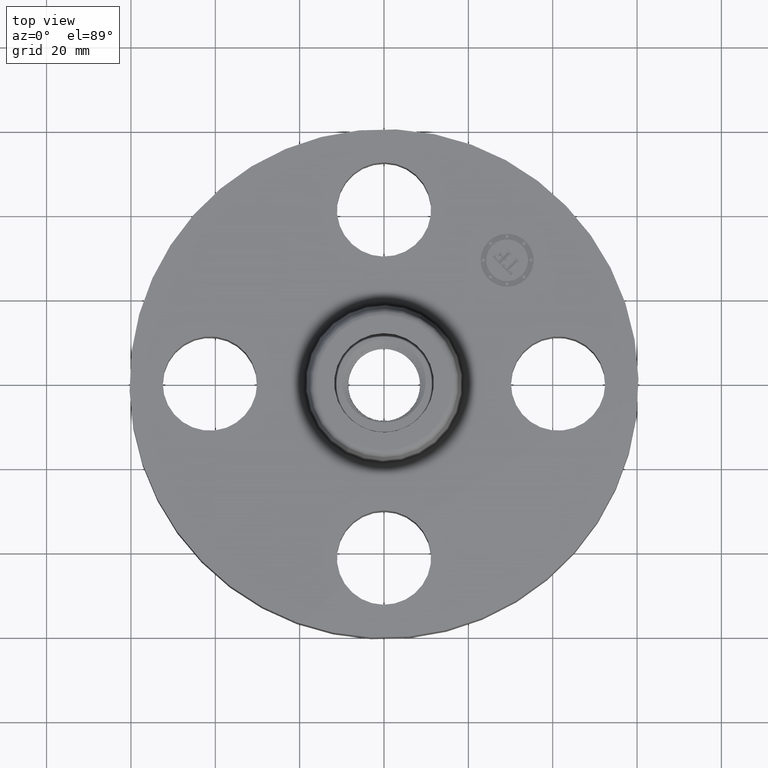
[diagram: clean part render]
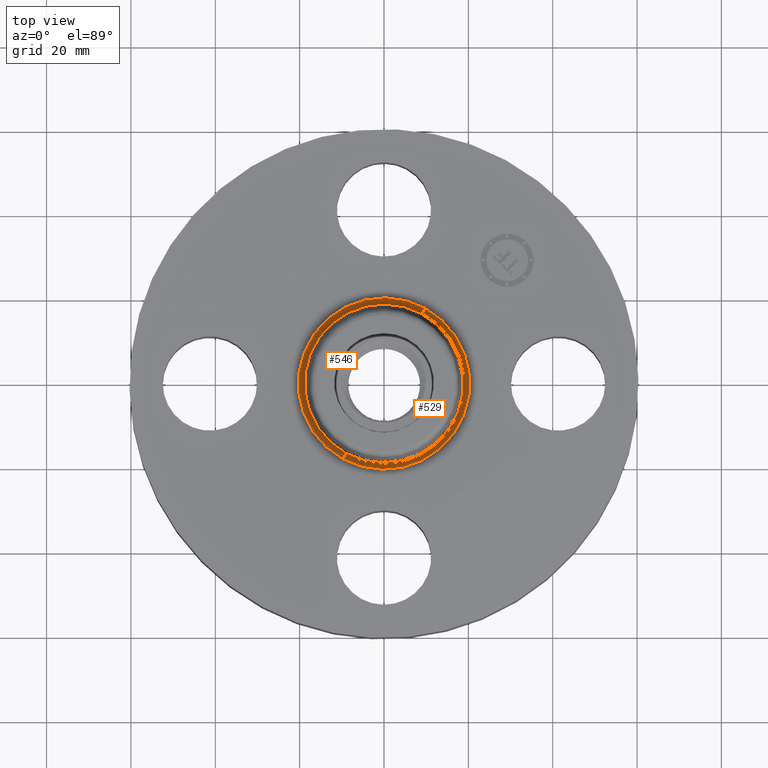
[diagram: same view with one multi-face feature highlighted, each face labeled with its STEP entity id]
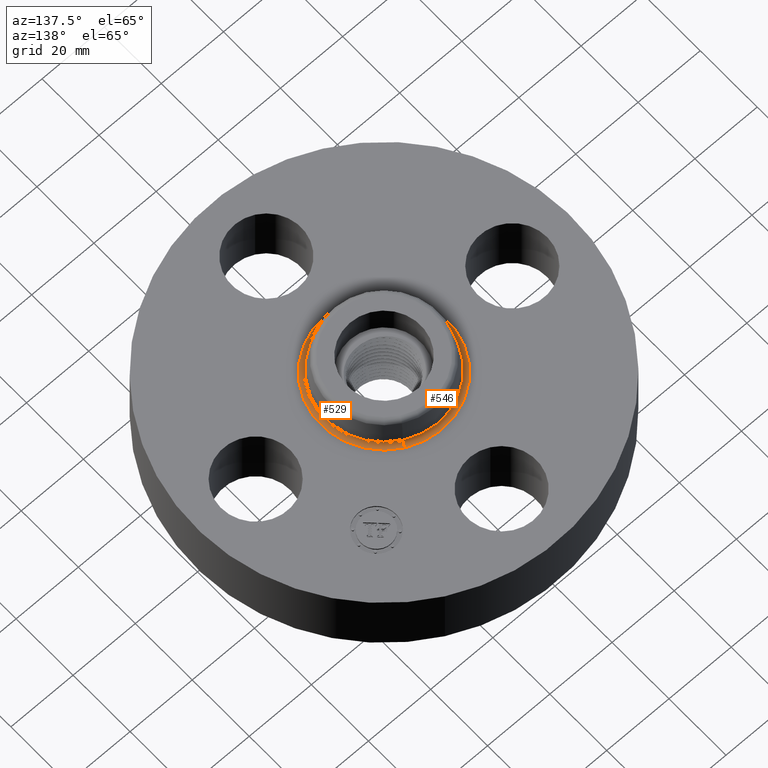
[diagram: same view with one multi-face feature highlighted, each face labeled with its STEP entity id]
A machine part, top view. The highlighted faces form ONE feature: a constant-radius fillet chain: 2 tangent blend faces with common blend radius 1.524 mm. The faces share edges in the B-rep.
A second angle (auxiliary view) of the same feature is appended — it is thin or edge-on in the first view.
Their STEP definitions:
[1] entity #546 (Torus):
#493=AXIS2_PLACEMENT_3D('Torus Axis2P3D',#490,#491,#492) ;
#506=AXIS2_PLACEMENT_3D('Circle Axis2P3D',#504,#505,$) ;
#520=AXIS2_PLACEMENT_3D('Circle Axis2P3D',#518,#519,$) ;
#532=AXIS2_PLACEMENT_3D('Circle Axis2P3D',#530,#531,$) ;
#537=AXIS2_PLACEMENT_3D('Circle Axis2P3D',#535,#536,$) ;
#490=CARTESIAN_POINT('Axis2P3D Location',(0.,0.,0.940000000004)) ;
#499=CARTESIAN_POINT('Vertex',(0.383706301512,0.702369673661,0.880000000004)) ;
#501=CARTESIAN_POINT('Vertex',(-0.383706301512,-0.702369673661,0.880000000004)) ;
#504=CARTESIAN_POINT('Axis2P3D Location',(0.383706301512,0.702369673661,0.940000000004)) ;
#508=CARTESIAN_POINT('Vertex',(0.355377782267,0.650514667009,0.929581109344)) ;
#515=CARTESIAN_POINT('Vertex',(-0.355377782267,-0.650514667009,0.929581109344)) ;
#518=CARTESIAN_POINT('Axis2P3D Location',(-0.383706301512,-0.702369673661,0.940000000004)) ;
#530=CARTESIAN_POINT('Axis2P3D Location',(0.,0.,0.880000000004)) ;
#535=CARTESIAN_POINT('Axis2P3D Location',(0.,0.,0.929581109344)) ;
#491=DIRECTION('Axis2P3D Direction',(0.,0.,-0.0393700787402)) ;
#492=DIRECTION('Axis2P3D XDirection',(-0.0188750212049,-0.0345504945626,0.)) ;
#505=DIRECTION('Axis2P3D Direction',(-0.0345504945626,0.0188750212049,0.)) ;
#519=DIRECTION('Axis2P3D Direction',(0.0345504945626,-0.0188750212049,0.)) ;
#531=DIRECTION('Axis2P3D Direction',(0.,0.,-0.0393700787402)) ;
#536=DIRECTION('Axis2P3D Direction',(0.,0.,-0.0393700787402)) ;
#541=ORIENTED_EDGE('',*,*,#534,.F.) ;
#542=ORIENTED_EDGE('',*,*,#522,.T.) ;
#543=ORIENTED_EDGE('',*,*,#539,.T.) ;
#544=ORIENTED_EDGE('',*,*,#510,.F.) ;
#546=ADVANCED_FACE('PartBody',(#545),#494,.F.) ;
#507=CIRCLE('generated circle',#506,0.0600000000002) ;
#521=CIRCLE('generated circle',#520,0.0600000000002) ;
#533=CIRCLE('generated circle',#532,0.800345977874) ;
#538=CIRCLE('generated circle',#537,0.741257512693) ;
#494=TOROIDAL_SURFACE('homeo Torus',#493,0.800345977874,0.0600000000002) ;
#510=EDGE_CURVE('',#500,#509,#507,.T.) ;
#522=EDGE_CURVE('',#502,#516,#521,.T.) ;
#534=EDGE_CURVE('',#502,#500,#533,.T.) ;
#539=EDGE_CURVE('',#516,#509,#538,.T.) ;
#540=EDGE_LOOP('',(#541,#542,#543,#544)) ;
#545=FACE_OUTER_BOUND('',#540,.T.) ;
#500=VERTEX_POINT('',#499) ;
#502=VERTEX_POINT('',#501) ;
#509=VERTEX_POINT('',#508) ;
#516=VERTEX_POINT('',#515) ;
[2] entity #529 (Torus):
#493=AXIS2_PLACEMENT_3D('Torus Axis2P3D',#490,#491,#492) ;
#497=AXIS2_PLACEMENT_3D('Circle Axis2P3D',#495,#496,$) ;
#506=AXIS2_PLACEMENT_3D('Circle Axis2P3D',#504,#505,$) ;
#513=AXIS2_PLACEMENT_3D('Circle Axis2P3D',#511,#512,$) ;
#520=AXIS2_PLACEMENT_3D('Circle Axis2P3D',#518,#519,$) ;
#490=CARTESIAN_POINT('Axis2P3D Location',(0.,0.,0.940000000004)) ;
#495=CARTESIAN_POINT('Axis2P3D Location',(0.,0.,0.880000000004)) ;
#499=CARTESIAN_POINT('Vertex',(0.383706301512,0.702369673661,0.880000000004)) ;
#501=CARTESIAN_POINT('Vertex',(-0.383706301512,-0.702369673661,0.880000000004)) ;
#504=CARTESIAN_POINT('Axis2P3D Location',(0.383706301512,0.702369673661,0.940000000004)) ;
#508=CARTESIAN_POINT('Vertex',(0.355377782267,0.650514667009,0.929581109344)) ;
#511=CARTESIAN_POINT('Axis2P3D Location',(0.,0.,0.929581109344)) ;
#515=CARTESIAN_POINT('Vertex',(-0.355377782267,-0.650514667009,0.929581109344)) ;
#518=CARTESIAN_POINT('Axis2P3D Location',(-0.383706301512,-0.702369673661,0.940000000004)) ;
#491=DIRECTION('Axis2P3D Direction',(0.,0.,-0.0393700787402)) ;
#492=DIRECTION('Axis2P3D XDirection',(-0.0188750212049,-0.0345504945626,0.)) ;
#496=DIRECTION('Axis2P3D Direction',(0.,0.,-0.0393700787402)) ;
#505=DIRECTION('Axis2P3D Direction',(-0.0345504945626,0.0188750212049,0.)) ;
#512=DIRECTION('Axis2P3D Direction',(0.,0.,-0.0393700787402)) ;
#519=DIRECTION('Axis2P3D Direction',(0.0345504945626,-0.0188750212049,0.)) ;
#524=ORIENTED_EDGE('',*,*,#503,.F.) ;
#525=ORIENTED_EDGE('',*,*,#510,.T.) ;
#526=ORIENTED_EDGE('',*,*,#517,.T.) ;
#527=ORIENTED_EDGE('',*,*,#522,.F.) ;
#529=ADVANCED_FACE('PartBody',(#528),#494,.F.) ;
#498=CIRCLE('generated circle',#497,0.800345977874) ;
#507=CIRCLE('generated circle',#506,0.0600000000002) ;
#514=CIRCLE('generated circle',#513,0.741257512693) ;
#521=CIRCLE('generated circle',#520,0.0600000000002) ;
#494=TOROIDAL_SURFACE('homeo Torus',#493,0.800345977874,0.0600000000002) ;
#503=EDGE_CURVE('',#500,#502,#498,.T.) ;
#510=EDGE_CURVE('',#500,#509,#507,.T.) ;
#517=EDGE_CURVE('',#509,#516,#514,.T.) ;
#522=EDGE_CURVE('',#502,#516,#521,.T.) ;
#523=EDGE_LOOP('',(#524,#525,#526,#527)) ;
#528=FACE_OUTER_BOUND('',#523,.T.) ;
#500=VERTEX_POINT('',#499) ;
#502=VERTEX_POINT('',#501) ;
#509=VERTEX_POINT('',#508) ;
#516=VERTEX_POINT('',#515) ;